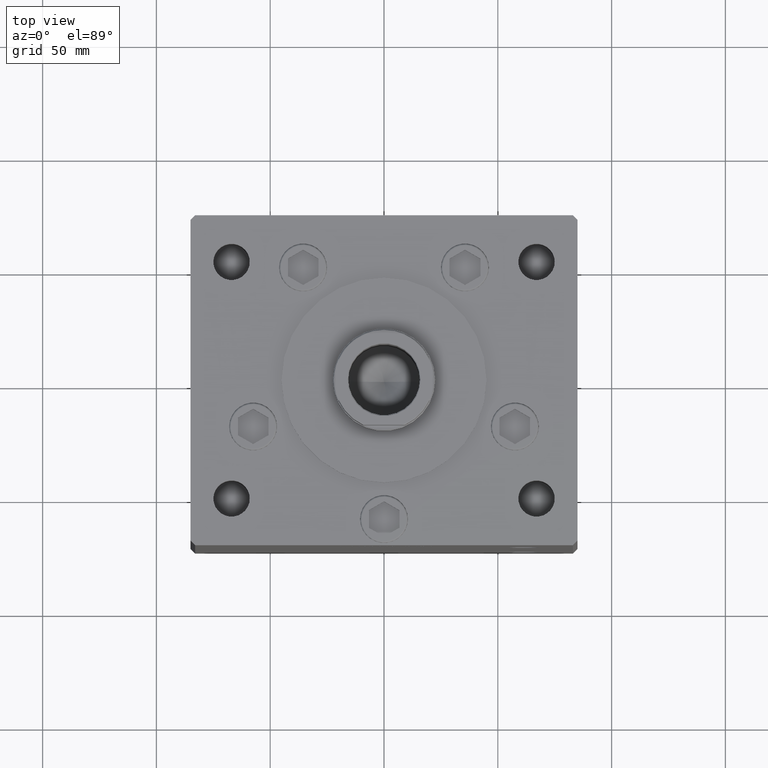
[diagram: clean part render]
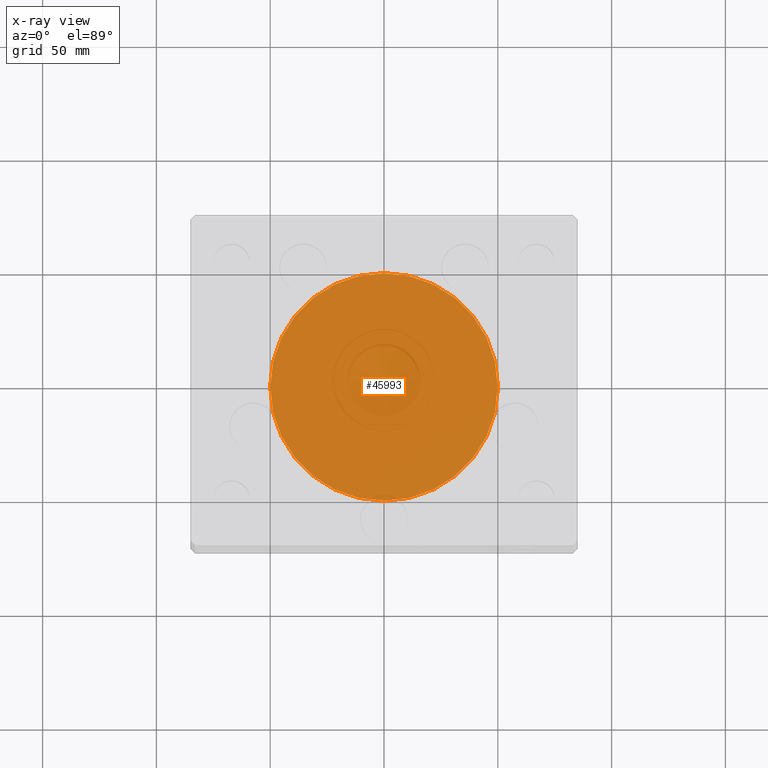
[diagram: x-ray — body ghosted, one internal face saturated and labeled with its STEP entity id]
A machine part, top view, then the same camera in x-ray: the body is ghosted and one INTERNAL B-rep face — a face not visible from any outside direction — is saturated and labeled: STEP entity #45993.
In plain terms, the highlighted planar face has unit normal (-0, 0, 1).
Its self-contained STEP definition (entity closure, byte-faithful):
#1853 = CARTESIAN_POINT ( 'NONE',  ( 0.000000000000000000, 0.000000000000000000, -38.00000000000000000 ) ) ;
#6755 = DIRECTION ( 'NONE',  ( -1.000000000000000000, 0.000000000000000000, -0.000000000000000000 ) ) ;
#9917 = DIRECTION ( 'NONE',  ( 0.000000000000000000, 0.000000000000000000, -1.000000000000000000 ) ) ;
#10432 = PLANE ( 'NONE',  #12739 ) ;
#11238 = EDGE_LOOP ( 'NONE', ( #38060, #42459 ) ) ;
#12509 = DIRECTION ( 'NONE',  ( 0.000000000000000000, 0.000000000000000000, -1.000000000000000000 ) ) ;
#12739 = AXIS2_PLACEMENT_3D ( 'NONE', #41818, #9917, #6755 ) ;
#15477 = CIRCLE ( 'NONE', #18870, 50.00000000000000000 ) ;
#17746 = EDGE_CURVE ( 'NONE', #49791, #27183, #44780, .T. ) ;
#18044 = CARTESIAN_POINT ( 'NONE',  ( 50.00000000000000000, 0.000000000000000000, -38.00000000000000000 ) ) ;
#18870 = AXIS2_PLACEMENT_3D ( 'NONE', #28620, #12509, #23645 ) ;
#23645 = DIRECTION ( 'NONE',  ( -1.000000000000000000, 0.000000000000000000, 0.000000000000000000 ) ) ;
#23912 = EDGE_CURVE ( 'NONE', #27183, #49791, #15477, .T. ) ;
#27183 = VERTEX_POINT ( 'NONE', #18044 ) ;
#28620 = CARTESIAN_POINT ( 'NONE',  ( 0.000000000000000000, 0.000000000000000000, -38.00000000000000000 ) ) ;
#29986 = FACE_OUTER_BOUND ( 'NONE', #11238, .T. ) ;
#32720 = DIRECTION ( 'NONE',  ( 0.000000000000000000, 0.000000000000000000, -1.000000000000000000 ) ) ;
#38060 = ORIENTED_EDGE ( 'NONE', *, *, #23912, .T. ) ;
#41818 = CARTESIAN_POINT ( 'NONE',  ( 0.000000000000000000, 0.000000000000000000, -38.00000000000000000 ) ) ;
#42459 = ORIENTED_EDGE ( 'NONE', *, *, #17746, .T. ) ;
#44780 = CIRCLE ( 'NONE', #49857, 50.00000000000000000 ) ;
#45993 = ADVANCED_FACE ( 'NONE', ( #29986 ), #10432, .T. ) ;
#48764 = DIRECTION ( 'NONE',  ( -1.000000000000000000, 0.000000000000000000, 0.000000000000000000 ) ) ;
#49111 = CARTESIAN_POINT ( 'NONE',  ( -50.00000000000000000, 6.123233995736766085E-15, -38.00000000000000000 ) ) ;
#49791 = VERTEX_POINT ( 'NONE', #49111 ) ;
#49857 = AXIS2_PLACEMENT_3D ( 'NONE', #1853, #32720, #48764 ) ;